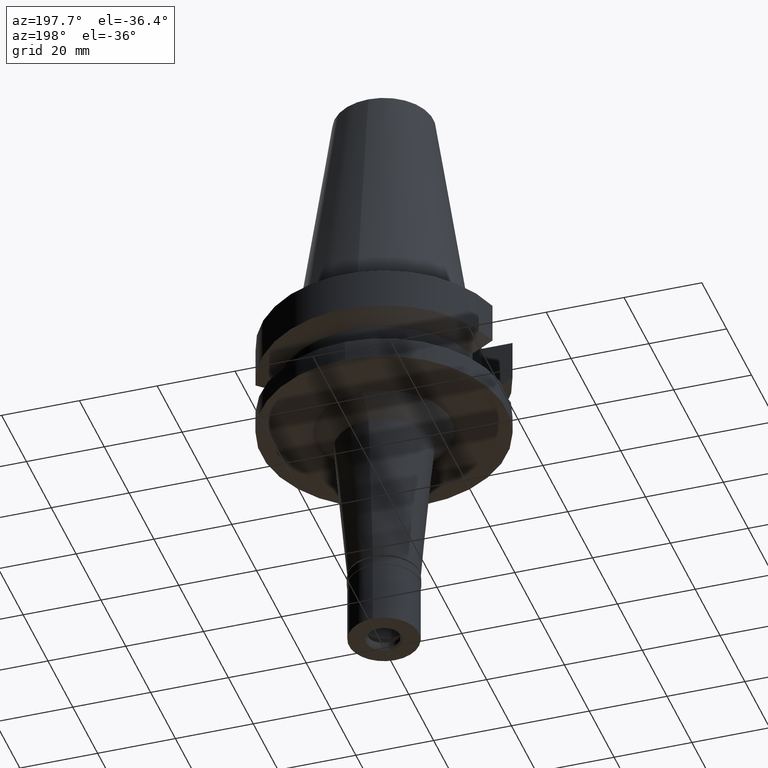
[diagram: clean part render]
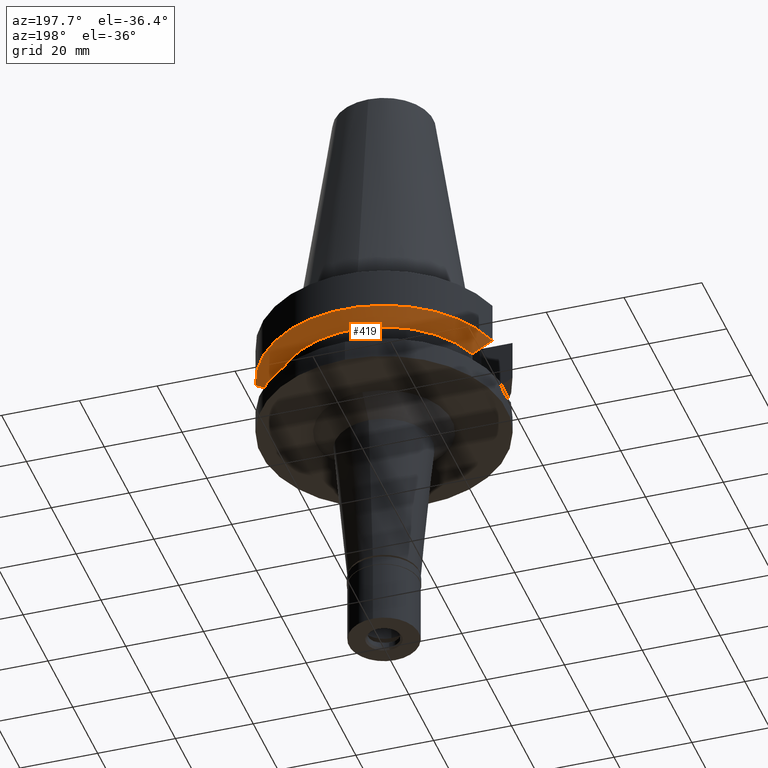
[diagram: same view with one face highlighted and labeled with its STEP entity id]
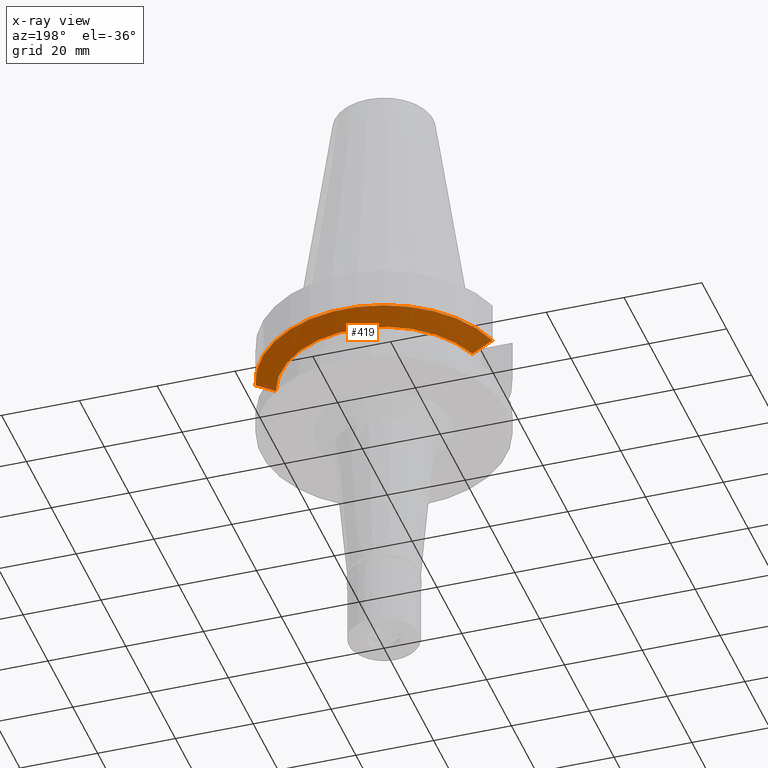
[diagram: x-ray of the same camera — body ghosted, the highlighted face saturated]
A machine part, auxiliary view. The second image highlights one B-rep face of the part: STEP entity #419.
The next image is the same camera in x-ray: the body ghosted, the highlighted face saturated — about 0% of this face is hidden behind the body in this view.
In plain terms, the highlighted conical surface has half-angle 60 deg.
Its self-contained STEP definition (entity closure, byte-faithful):
#8 = CARTESIAN_POINT ( 'NONE',  ( 25.24772413187000097, 8.049995413733999072, -14.45229204367000087 ) ) ;
#186 = ORIENTED_EDGE ( 'NONE', *, *, #2710, .T. ) ;
#205 = EDGE_CURVE ( 'NONE', #2622, #815, #2345, .T. ) ;
#270 = AXIS2_PLACEMENT_3D ( 'NONE', #2483, #1540, #1757 ) ;
#277 = AXIS2_PLACEMENT_3D ( 'NONE', #2551, #443, #1839 ) ;
#286 = CARTESIAN_POINT ( 'NONE',  ( -25.24772216434000072, 8.050001584611999661, -14.45224489077999941 ) ) ;
#380 = FACE_OUTER_BOUND ( 'NONE', #1095, .T. ) ;
#419 = ADVANCED_FACE ( 'NONE', ( #380 ), #2723, .T. ) ;
#443 = DIRECTION ( 'NONE',  ( 0.0000000000000000000, 0.0000000000000000000, 1.000000000000000000 ) ) ;
#534 = EDGE_CURVE ( 'NONE', #2257, #815, #2586, .T. ) ;
#567 = CARTESIAN_POINT ( 'NONE',  ( 26.83754614138751649, 8.049990817311602598, -13.57774889203567881 ) ) ;
#611 = CARTESIAN_POINT ( 'NONE',  ( 30.45402291393999761, 8.049999276842999762, -11.56551216599000043 ) ) ;
#620 = CARTESIAN_POINT ( 'NONE',  ( -25.24772216434000072, 8.050001584611999661, -14.45224489077999941 ) ) ;
#636 = ORIENTED_EDGE ( 'NONE', *, *, #534, .F. ) ;
#766 = ORIENTED_EDGE ( 'NONE', *, *, #205, .T. ) ;
#790 = CARTESIAN_POINT ( 'NONE',  ( -30.45402162707999949, 8.050004145194000316, -11.56546831452999946 ) ) ;
#815 = VERTEX_POINT ( 'NONE', #1489 ) ;
#852 = AXIS2_PLACEMENT_3D ( 'NONE', #1670, #2374, #1215 ) ;
#1024 = CARTESIAN_POINT ( 'NONE',  ( 28.57292327237102114, 8.049998554625556579, -12.61549606574215865 ) ) ;
#1095 = EDGE_LOOP ( 'NONE', ( #636, #186, #1586, #766 ) ) ;
#1206 = CARTESIAN_POINT ( 'NONE',  ( -28.57295866802980910, 8.050008285351609061, -12.61547482854027891 ) ) ;
#1215 = DIRECTION ( 'NONE',  ( -0.9527442516822307583, 0.3037735849057093818, 0.0000000000000000000 ) ) ;
#1261 = CARTESIAN_POINT ( 'NONE',  ( 30.45402291393999761, 8.049999276842999762, -11.56551216599000043 ) ) ;
#1489 = CARTESIAN_POINT ( 'NONE',  ( -30.45402162707999949, 8.050004145194000316, -11.56546831452999946 ) ) ;
#1540 = DIRECTION ( 'NONE',  ( 0.0000000000000000000, 0.0000000000000000000, 1.000000000000000000 ) ) ;
#1586 = ORIENTED_EDGE ( 'NONE', *, *, #1605, .F. ) ;
#1605 = EDGE_CURVE ( 'NONE', #2622, #1912, #2056, .T. ) ;
#1670 = CARTESIAN_POINT ( 'NONE',  ( 0.0000000000000000000, 1.065333950388000029E-14, -14.45225699861000024 ) ) ;
#1757 = DIRECTION ( 'NONE',  ( 0.0000000000000000000, 1.000000000000000000, 0.0000000000000000000 ) ) ;
#1839 = DIRECTION ( 'NONE',  ( 0.0000000000000000000, 1.000000000000000000, 0.0000000000000000000 ) ) ;
#1912 = VERTEX_POINT ( 'NONE', #8 ) ;
#1955 = B_SPLINE_CURVE_WITH_KNOTS ( 'NONE', 3,
 ( #1261, #1024, #567, #1995 ),
 .UNSPECIFIED., .F., .F.,
 ( 4, 4 ),
 ( 0.0000000000000000000, 1.000000000000000000 ),
 .UNSPECIFIED. ) ;
#1995 = CARTESIAN_POINT ( 'NONE',  ( 25.24772413187000097, 8.049995413733999072, -14.45229204367000087 ) ) ;
#2056 = CIRCLE ( 'NONE', #852, 26.50000000000000711 ) ;
#2257 = VERTEX_POINT ( 'NONE', #611 ) ;
#2345 = B_SPLINE_CURVE_WITH_KNOTS ( 'NONE', 3,
 ( #286, #2868, #1206, #790 ),
 .UNSPECIFIED., .F., .F.,
 ( 4, 4 ),
 ( 0.0000000000000000000, 1.000000000000000000 ),
 .UNSPECIFIED. ) ;
#2374 = DIRECTION ( 'NONE',  ( 0.0000000000000000000, 0.0000000000000000000, -1.000000000000000000 ) ) ;
#2483 = CARTESIAN_POINT ( 'NONE',  ( 0.0000000000000000000, 1.065333950388000029E-14, -13.00888132564000088 ) ) ;
#2551 = CARTESIAN_POINT ( 'NONE',  ( 0.0000000000000000000, 1.065333950388000029E-14, -11.56550565266999975 ) ) ;
#2586 = CIRCLE ( 'NONE', #277, 31.50000000000000000 ) ;
#2622 = VERTEX_POINT ( 'NONE', #620 ) ;
#2710 = EDGE_CURVE ( 'NONE', #2257, #1912, #1955, .T. ) ;
#2723 = CONICAL_SURFACE ( 'NONE', #270, 29.00000000000000000, 1.047197551196400456 ) ;
#2868 = CARTESIAN_POINT ( 'NONE',  ( -26.83758143443306565, 8.050003172647581806, -13.57772737971592747 ) ) ;